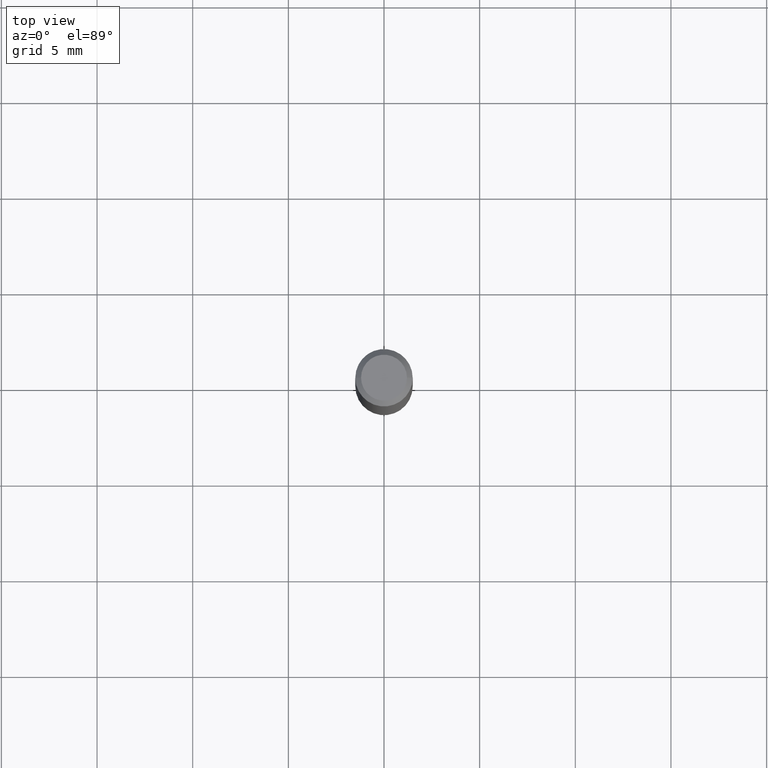
[diagram: clean part render]
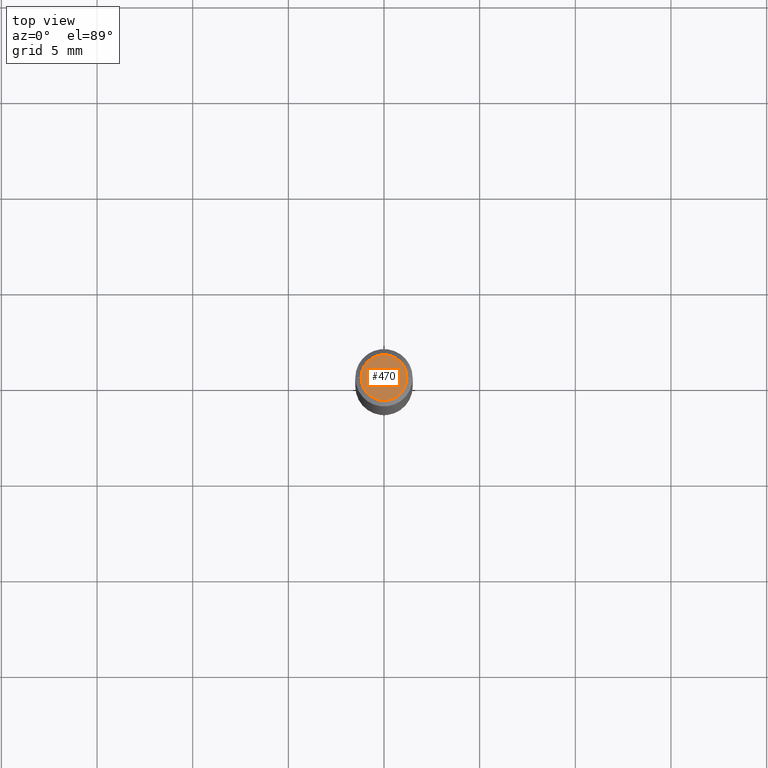
[diagram: same view with one face highlighted and labeled with its STEP entity id]
A machine part, top view. The second image highlights one B-rep face of the part: STEP entity #470.
In plain terms, the highlighted planar face has unit normal (0, -0, -1).
Its self-contained STEP definition (entity closure, byte-faithful):
#8 = FACE_OUTER_BOUND ( 'NONE', #63, .T. ) ;
#9 = AXIS2_PLACEMENT_3D ( 'NONE', #309, #426, #156 ) ;
#21 = CARTESIAN_POINT ( 'NONE',  ( 8.265746106709734507E-48, -1.180129479067563789E-33, -3.380025165646692144E-19 ) ) ;
#34 = AXIS2_PLACEMENT_3D ( 'NONE', #277, #272, #384 ) ;
#49 = CIRCLE ( 'NONE', #229, 0.04724000000000000421 ) ;
#63 = EDGE_LOOP ( 'NONE', ( #269, #71 ) ) ;
#71 = ORIENTED_EDGE ( 'NONE', *, *, #406, .T. ) ;
#108 = CARTESIAN_POINT ( 'NONE',  ( -0.04724000000000000421, 3.504923541997677355E-16, -3.380025165670481712E-19 ) ) ;
#111 = VERTEX_POINT ( 'NONE', #198 ) ;
#127 = PLANE ( 'NONE',  #9 ) ;
#156 = DIRECTION ( 'NONE',  ( -1.000000000000000000, 6.982962677686265922E-15, -4.876176775795935793E-29 ) ) ;
#178 = CIRCLE ( 'NONE', #34, 0.04724000000000000421 ) ;
#198 = CARTESIAN_POINT ( 'NONE',  ( 0.04724000000000000421, -3.852183633974369345E-16, -3.380025165621689721E-19 ) ) ;
#224 = VERTEX_POINT ( 'NONE', #108 ) ;
#229 = AXIS2_PLACEMENT_3D ( 'NONE', #21, #488, #249 ) ;
#248 = EDGE_CURVE ( 'NONE', #224, #111, #49, .T. ) ;
#249 = DIRECTION ( 'NONE',  ( 1.000000000000000000, -6.982962677686266711E-15, 4.876185090822587894E-29 ) ) ;
#269 = ORIENTED_EDGE ( 'NONE', *, *, #248, .T. ) ;
#272 = DIRECTION ( 'NONE',  ( -2.445468806185136597E-29, 3.491481338843145583E-15, 1.000000000000000000 ) ) ;
#277 = CARTESIAN_POINT ( 'NONE',  ( 8.265746106709734507E-48, -1.180129479067563789E-33, -3.380025165646692144E-19 ) ) ;
#309 = CARTESIAN_POINT ( 'NONE',  ( 4.132873053354867254E-48, -5.900647395337818946E-34, -1.690012582823346072E-19 ) ) ;
#384 = DIRECTION ( 'NONE',  ( 1.000000000000000000, -6.982962677686266711E-15, 4.876185090822587894E-29 ) ) ;
#406 = EDGE_CURVE ( 'NONE', #111, #224, #178, .T. ) ;
#426 = DIRECTION ( 'NONE',  ( 2.438088387897960049E-29, -3.491481338843145188E-15, -1.000000000000000000 ) ) ;
#470 = ADVANCED_FACE ( 'NONE', ( #8 ), #127, .F. ) ;
#488 = DIRECTION ( 'NONE',  ( -2.445468806185136597E-29, 3.491481338843145583E-15, 1.000000000000000000 ) ) ;